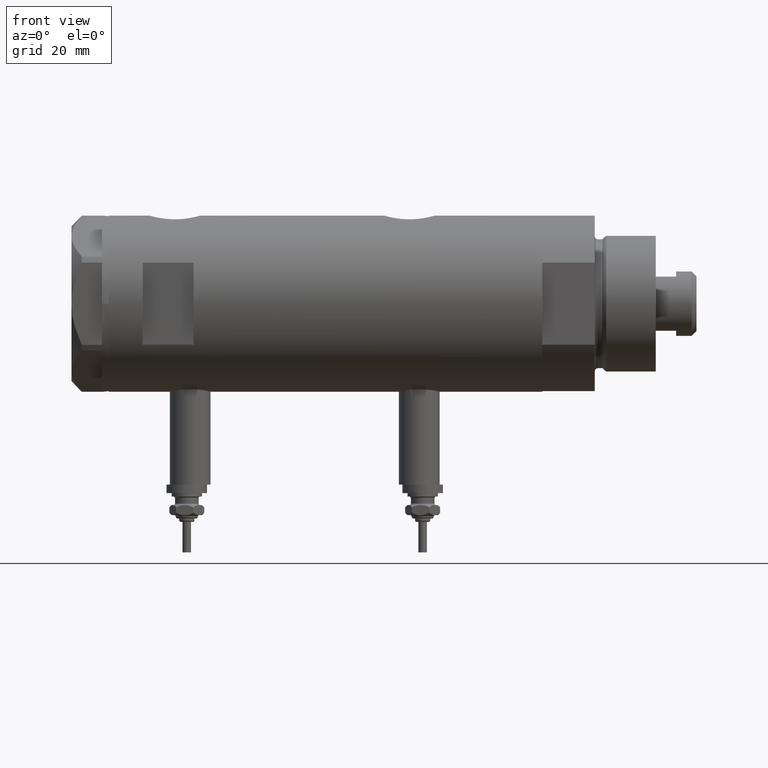
[diagram: clean part render]
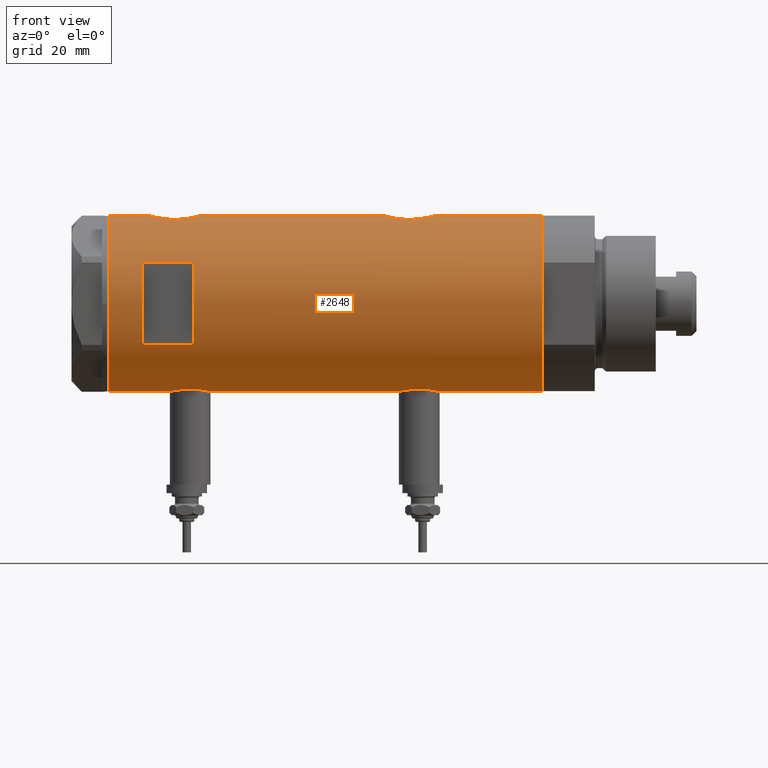
[diagram: same view with one face highlighted and labeled with its STEP entity id]
A machine part, front view. The second image highlights one B-rep face of the part: STEP entity #2648.
In plain terms, the highlighted cylindrical surface (partial cylindrical patch) has radius 26 mm, axis along (-1, -0, 0).
Its self-contained STEP definition (entity closure, byte-faithful):
#16 = CARTESIAN_POINT ( 'NONE',  ( -26.00000000000000355, 3.184077527325983904E-15, -33.90000000000001279 ) ) ;
#47 = CARTESIAN_POINT ( 'NONE',  ( -25.72076778631230454, -3.815670258243487822, -32.61687810531881127 ) ) ;
#74 = CARTESIAN_POINT ( 'NONE',  ( -25.28680988956730502, -6.048472998962281189, -29.27627694188244334 ) ) ;
#95 = VECTOR ( 'NONE', #6230, 1000.000000000000000 ) ;
#106 = CARTESIAN_POINT ( 'NONE',  ( -25.99009752186833566, -0.8230863847107473541, -21.44082928593318016 ) ) ;
#150 = DIRECTION ( 'NONE',  ( 0.000000000000000000, 0.000000000000000000, 1.000000000000000000 ) ) ;
#208 = CARTESIAN_POINT ( 'NONE',  ( -25.99999999999998934, -0.4144764235405755670, 46.19999999999998863 ) ) ;
#233 = CARTESIAN_POINT ( 'NONE',  ( -26.00000000000000355, 3.184081677783118585E-15, -63.95000000000000995 ) ) ;
#243 = CARTESIAN_POINT ( 'NONE',  ( -25.67063510297210271, -4.128418051804841227, 44.64682575271267240 ) ) ;
#274 = CARTESIAN_POINT ( 'NONE',  ( 25.98599366666248756, -0.9828433289544070695, -17.29811598276525686 ) ) ;
#306 = CARTESIAN_POINT ( 'NONE',  ( 24.92415241886516242, -7.401968919186685092, -23.51676462555185765 ) ) ;
#340 = CARTESIAN_POINT ( 'NONE',  ( 25.11243836838846377, -6.738202653785828389, -28.07956649155160278 ) ) ;
#345 = DIRECTION ( 'NONE',  ( 0.000000000000000000, 0.000000000000000000, 1.000000000000000000 ) ) ;
#365 = CARTESIAN_POINT ( 'NONE',  ( 26.00000000000000355, -3.975025925197986111E-20, 51.95000000000000284 ) ) ;
#368 = CARTESIAN_POINT ( 'NONE',  ( 26.00000000000000355, 6.604469597105595072E-16, -32.25000000000000000 ) ) ;
#386 = CARTESIAN_POINT ( 'NONE',  ( -26.00000000000000355, 3.184077527313362130E-15, 33.70000000000000995 ) ) ;
#392 = CARTESIAN_POINT ( 'NONE',  ( 25.98599366666249466, -0.9828433289544075135, 51.90188401723472822 ) ) ;
#395 = CARTESIAN_POINT ( 'NONE',  ( 24.96970063328116751, -7.247045583599691199, -26.69719214854802658 ) ) ;
#422 = DIRECTION ( 'NONE',  ( -0.000000000000000000, 0.000000000000000000, -1.000000000000000000 ) ) ;
#429 = VERTEX_POINT ( 'NONE', #666 ) ;
#470 = ORIENTED_EDGE ( 'NONE', *, *, #5350, .F. ) ;
#475 = CARTESIAN_POINT ( 'NONE',  ( -26.00000000000000355, 3.184077527313362130E-15, 33.70000000000000995 ) ) ;
#510 = DIRECTION ( 'NONE',  ( 1.000000000000000000, 0.000000000000000000, 0.000000000000000000 ) ) ;
#545 = EDGE_CURVE ( 'NONE', #4978, #2285, #5662, .T. ) ;
#559 = CARTESIAN_POINT ( 'NONE',  ( -25.92364458890659762, -2.026637113504535570, -21.72369009308525278 ) ) ;
#586 = CARTESIAN_POINT ( 'NONE',  ( -25.78943824387523875, -3.306687742228911819, -32.95754138783468079 ) ) ;
#589 = ORIENTED_EDGE ( 'NONE', *, *, #3321, .F. ) ;
#590 = CARTESIAN_POINT ( 'NONE',  ( -25.74330903162726614, -3.648508829439214285, 45.02867714715799252 ) ) ;
#617 = CARTESIAN_POINT ( 'NONE',  ( -25.67167563980648382, -4.129238867693853621, -32.35934056431106143 ) ) ;
#625 = CARTESIAN_POINT ( 'NONE',  ( -25.38662204309617110, -5.616507264474310368, 42.72199377719325497 ) ) ;
#659 = CARTESIAN_POINT ( 'NONE',  ( -12.12435565298214080, -23.00000000000000355, 53.94999999999999574 ) ) ;
#666 = CARTESIAN_POINT ( 'NONE',  ( -26.00000000000000355, 3.184081677783118585E-15, 63.95000000000000995 ) ) ;
#691 = CARTESIAN_POINT ( 'NONE',  ( -25.49846181844015192, -5.083495422175122513, 43.59177503382596797 ) ) ;
#749 = ORIENTED_EDGE ( 'NONE', *, *, #4256, .F. ) ;
#787 = CARTESIAN_POINT ( 'NONE',  ( 25.38109653984944103, -5.641393955635660262, 49.39819092448751547 ) ) ;
#789 = CARTESIAN_POINT ( 'NONE',  ( 25.11342038069227200, -6.734617143597201760, -21.41229304209504747 ) ) ;
#801 = EDGE_CURVE ( 'NONE', #5942, #5199, #6120, .T. ) ;
#812 = VECTOR ( 'NONE', #2725, 1000.000000000000000 ) ;
#816 = CARTESIAN_POINT ( 'NONE',  ( 26.00000000000000355, 2.393127611988522640E-16, 36.95000000000000284 ) ) ;
#819 = CARTESIAN_POINT ( 'NONE',  ( 25.93085545515511470, -1.956676574435509242, -17.49272963169731909 ) ) ;
#838 = LINE ( 'NONE', #4687, #6263 ) ;
#850 = CARTESIAN_POINT ( 'NONE',  ( 25.78993643992928853, -3.329561377902404029, 51.18821560278738048 ) ) ;
#853 = CARTESIAN_POINT ( 'NONE',  ( 25.93098857934040780, -1.953835360821264411, -32.00773664702560950 ) ) ;
#867 = AXIS2_PLACEMENT_3D ( 'NONE', #3370, #2299, #1333 ) ;
#881 = CARTESIAN_POINT ( 'NONE',  ( 25.52449676677459323, -4.953491517965875168, 38.81325508665924673 ) ) ;
#883 = CARTESIAN_POINT ( 'NONE',  ( 25.59500516383205593, -4.575229401795793294, -30.69787755065420143 ) ) ;
#953 = CARTESIAN_POINT ( 'NONE',  ( -25.31551596256916525, -5.928819821281959612, 37.92988508095918121 ) ) ;
#986 = CARTESIAN_POINT ( 'NONE',  ( -25.28632996747171902, -6.050474653715411932, 41.56911870841535972 ) ) ;
#1003 = CARTESIAN_POINT ( 'NONE',  ( -25.42977453177915592, -5.420307583276851915, -30.78812271793362498 ) ) ;
#1014 = DIRECTION ( 'NONE',  ( 0.000000000000000000, 0.000000000000000000, 1.000000000000000000 ) ) ;
#1034 = CARTESIAN_POINT ( 'NONE',  ( -25.71926338401910073, -3.813768894920913421, -22.69427860166186051 ) ) ;
#1042 = CARTESIAN_POINT ( 'NONE',  ( -25.24022290516698419, -6.239518219915426656, 39.53402784061567843 ) ) ;
#1045 = CARTESIAN_POINT ( 'NONE',  ( -26.00000000000000355, 3.184077527325983904E-15, -33.90000000000001279 ) ) ;
#1049 = CARTESIAN_POINT ( 'NONE',  ( 26.00000000000000355, 0.000000000000000000, -63.95000000000000995 ) ) ;
#1072 = EDGE_LOOP ( 'NONE', ( #3709, #470, #5289, #2751 ) ) ;
#1074 = CARTESIAN_POINT ( 'NONE',  ( -25.99036913299955742, -0.8159609457881432659, 33.73968856968108554 ) ) ;
#1098 = CARTESIAN_POINT ( 'NONE',  ( -25.81232680456767881, -3.137210741985117846, -22.22886342778422630 ) ) ;
#1110 = FACE_OUTER_BOUND ( 'NONE', #4044, .T. ) ;
#1139 = B_SPLINE_CURVE_WITH_KNOTS ( 'NONE', 3,
 ( #16, #3493, #1581, #3458, #3954, #5417, #4948, #3402, #586, #47, #617, #2055, #4532, #1003, #1961, #2948, #74, #5358, #5903, #5875, #4915, #4888, #2480, #1517, #5482, #2022, #4435, #3983, #5933, #3528, #1994, #2536, #2448, #1034, #2979, #1098, #4497, #559, #3039, #106, #2510, #4016 ),
 .UNSPECIFIED., .F., .F.,
 ( 4, 2, 2, 2, 2, 2, 2, 2, 2, 2, 2, 2, 2, 2, 2, 2, 2, 2, 2, 2, 4 ),
 ( 0.01961238453869442941, 0.02083783025472766420, 0.02206327597076090247, 0.02267599882877751813, 0.02328872168679413032, 0.02451416740282735818, 0.02573961311886058950, 0.02696505883489381389, 0.02819050455092704521, 0.02880322740894365394, 0.02941595026696026266, 0.03064139598299348011, 0.03186684169902669755, 0.03309228741505991500, 0.03370501027307653413, 0.03431773313109314633, 0.03493045598910975852, 0.03554317884712637071, 0.03676862456315959510, 0.03799407027919281948, 0.03921951599522604387 ),
 .UNSPECIFIED. ) ;
#1175 = VERTEX_POINT ( 'NONE', #4102 ) ;
#1176 = CARTESIAN_POINT ( 'NONE',  ( -25.59645788645698872, -4.565358797148513226, 44.22330529203480864 ) ) ;
#1198 = ORIENTED_EDGE ( 'NONE', *, *, #801, .F. ) ;
#1204 = CARTESIAN_POINT ( 'NONE',  ( -26.00000000000000355, -2.813058302341337106E-16, 46.20000000000000284 ) ) ;
#1260 = CARTESIAN_POINT ( 'NONE',  ( 24.89478872726946435, -7.499966281647702182, 44.69821850634780702 ) ) ;
#1263 = CARTESIAN_POINT ( 'NONE',  ( 24.96672817551788270, -7.257586026187391681, -22.79615800278702409 ) ) ;
#1276 = EDGE_CURVE ( 'NONE', #4978, #3377, #4481, .T. ) ;
#1297 = CARTESIAN_POINT ( 'NONE',  ( 25.00829008792691965, -7.115081037226468119, 46.87301003740818572 ) ) ;
#1300 = CARTESIAN_POINT ( 'NONE',  ( 25.72873412774686486, -3.768477344985556421, -18.24712539855537585 ) ) ;
#1312 = CARTESIAN_POINT ( 'NONE',  ( -26.00000000000000355, -2.813058302341337106E-16, 46.20000000000000284 ) ) ;
#1328 = CARTESIAN_POINT ( 'NONE',  ( 25.31004928890825312, -5.952041021437453949, 49.01980599883506073 ) ) ;
#1331 = CARTESIAN_POINT ( 'NONE',  ( 26.00000000000000355, -3.975025925197986111E-20, -17.25000000000000000 ) ) ;
#1333 = DIRECTION ( 'NONE',  ( -1.000000000000000000, 0.000000000000000000, 0.000000000000000000 ) ) ;
#1363 = CARTESIAN_POINT ( 'NONE',  ( 25.30930190055639883, -5.959775463244126215, 39.87025956521971892 ) ) ;
#1374 = LINE ( 'NONE', #3253, #2160 ) ;
#1375 = VERTEX_POINT ( 'NONE', #1956 ) ;
#1379 = VECTOR ( 'NONE', #5052, 1000.000000000000000 ) ;
#1395 = CARTESIAN_POINT ( 'NONE',  ( 25.11342038069227200, -6.734617143597205313, 47.78770695790494472 ) ) ;
#1473 = LINE ( 'NONE', #2992, #1951 ) ;
#1492 = CARTESIAN_POINT ( 'NONE',  ( 26.00000000000000355, 6.604469597105595072E-16, -32.25000000000000000 ) ) ;
#1517 = CARTESIAN_POINT ( 'NONE',  ( -25.28632996747171546, -6.050474653715413709, -26.03088129158463815 ) ) ;
#1523 = CARTESIAN_POINT ( 'NONE',  ( -25.81160981652327280, -3.129523010631799718, 34.53607026277927616 ) ) ;
#1581 = CARTESIAN_POINT ( 'NONE',  ( -25.99036913299956097, -0.8159609457881449313, -33.86031143031890878 ) ) ;
#1646 = VERTEX_POINT ( 'NONE', #1049 ) ;
#1682 = CARTESIAN_POINT ( 'NONE',  ( -25.95206678899177888, -1.628763264760260565, 45.99800813330215021 ) ) ;
#1684 = CARTESIAN_POINT ( 'NONE',  ( 12.12435565298214080, -23.00000000000000355, 53.94999999999999574 ) ) ;
#1723 = EDGE_CURVE ( 'NONE', #1646, #4799, #6013, .T. ) ;
#1739 = CARTESIAN_POINT ( 'NONE',  ( 24.89478872726946079, -7.499966281647700406, -24.50178149365219227 ) ) ;
#1775 = VECTOR ( 'NONE', #150, 1000.000000000000000 ) ;
#1777 = CARTESIAN_POINT ( 'NONE',  ( 25.03461301890608581, -7.019803056070506919, -27.40183183106897147 ) ) ;
#1806 = CARTESIAN_POINT ( 'NONE',  ( 24.91324908721446008, -7.438459228814657820, 45.44017499374189839 ) ) ;
#1809 = CARTESIAN_POINT ( 'NONE',  ( 25.62983961939740496, -4.376509667782456425, -30.84558499042960378 ) ) ;
#1835 = CARTESIAN_POINT ( 'NONE',  ( 25.27534302296962565, -6.097250460344749712, 48.82409613097076573 ) ) ;
#1861 = DIRECTION ( 'NONE',  ( 1.000000000000000000, 0.000000000000000000, 0.000000000000000000 ) ) ;
#1865 = CARTESIAN_POINT ( 'NONE',  ( 24.90947356773250121, -7.451722770779339200, 43.46809158171848964 ) ) ;
#1911 = CARTESIAN_POINT ( 'NONE',  ( -25.57228991600092627, -4.705691472451699831, 35.81660309875347536 ) ) ;
#1942 = CARTESIAN_POINT ( 'NONE',  ( -12.12435565298214080, -23.00000000000000355, 38.94999999999999574 ) ) ;
#1951 = VECTOR ( 'NONE', #5887, 1000.000000000000000 ) ;
#1956 = CARTESIAN_POINT ( 'NONE',  ( 12.12435565298214080, -23.00000000000000355, 38.94999999999999574 ) ) ;
#1961 = CARTESIAN_POINT ( 'NONE',  ( -25.38744165544135711, -5.612847683295910883, -30.42987583238477001 ) ) ;
#1971 = CARTESIAN_POINT ( 'NONE',  ( -25.92425332714050867, -2.018894156999440526, 34.02103879324670999 ) ) ;
#1991 = VERTEX_POINT ( 'NONE', #659 ) ;
#1994 = CARTESIAN_POINT ( 'NONE',  ( -25.59645788645698872, -4.565358797148519443, -23.37669470796522120 ) ) ;
#2001 = CARTESIAN_POINT ( 'NONE',  ( -25.25769689814630325, -6.168504065326071206, 38.92353364703254925 ) ) ;
#2022 = CARTESIAN_POINT ( 'NONE',  ( -25.38662204309616754, -5.616507264474312144, -24.87800622280676777 ) ) ;
#2055 = CARTESIAN_POINT ( 'NONE',  ( -25.57228991600092272, -4.705691472451700719, -31.78339690124654027 ) ) ;
#2061 = CARTESIAN_POINT ( 'NONE',  ( -25.92364458890658696, -2.026637113504536458, 45.87630990691474153 ) ) ;
#2106 = CARTESIAN_POINT ( 'NONE',  ( 0.000000000000000000, 0.000000000000000000, -63.95000000000000995 ) ) ;
#2128 = CARTESIAN_POINT ( 'NONE',  ( -25.64593536028936782, -4.278686337618957225, 44.51031602960880207 ) ) ;
#2156 = AXIS2_PLACEMENT_3D ( 'NONE', #2106, #4545, #4513 ) ;
#2160 = VECTOR ( 'NONE', #345, 1000.000000000000000 ) ;
#2195 = CARTESIAN_POINT ( 'NONE',  ( -25.81232680456767170, -3.137210741985118290, 45.37113657221578933 ) ) ;
#2222 = CARTESIAN_POINT ( 'NONE',  ( 25.89059789403176381, -2.425642437452261380, -17.63622552757698969 ) ) ;
#2254 = CARTESIAN_POINT ( 'NONE',  ( 26.00000000000000711, -0.4910237949823162418, 51.95000000000000995 ) ) ;
#2257 = CARTESIAN_POINT ( 'NONE',  ( 25.88994451797512042, -2.432613607265603495, -31.86140968713203137 ) ) ;
#2285 = VERTEX_POINT ( 'NONE', #5602 ) ;
#2294 = CARTESIAN_POINT ( 'NONE',  ( 25.30930190055639883, -5.959775463244125326, -29.32974043478030168 ) ) ;
#2299 = DIRECTION ( 'NONE',  ( 0.000000000000000000, 0.000000000000000000, 1.000000000000000000 ) ) ;
#2323 = CARTESIAN_POINT ( 'NONE',  ( 24.91324908721446008, -7.438459228814659596, -23.75982500625810445 ) ) ;
#2347 = CARTESIAN_POINT ( 'NONE',  ( 24.96672817551788626, -7.257586026187397898, 46.40384199721297165 ) ) ;
#2349 = CARTESIAN_POINT ( 'NONE',  ( 25.98569226047905545, -0.9886551788957204101, -32.20082376600176843 ) ) ;
#2401 = CARTESIAN_POINT ( 'NONE',  ( 0.000000000000000000, 0.000000000000000000, 63.95000000000000995 ) ) ;
#2448 = CARTESIAN_POINT ( 'NONE',  ( -25.67063510297209561, -4.128418051804845668, -22.95317424728735389 ) ) ;
#2455 = CARTESIAN_POINT ( 'NONE',  ( -25.24765475072630139, -6.209883762780005867, 40.76678184355099432 ) ) ;
#2478 = EDGE_CURVE ( 'NONE', #429, #2285, #4106, .T. ) ;
#2480 = CARTESIAN_POINT ( 'NONE',  ( -25.24765475072629783, -6.209883762780005867, -26.83321815644901065 ) ) ;
#2499 = EDGE_CURVE ( 'NONE', #6168, #429, #1473, .T. ) ;
#2510 = CARTESIAN_POINT ( 'NONE',  ( -25.99999999999999645, -0.4144764235405757891, -21.39999999999999858 ) ) ;
#2520 = CARTESIAN_POINT ( 'NONE',  ( 12.12435565298214080, -23.00000000000000355, -63.95000000000000995 ) ) ;
#2536 = CARTESIAN_POINT ( 'NONE',  ( -25.64593536028935716, -4.278686337618962554, -23.08968397039123133 ) ) ;
#2550 = VERTEX_POINT ( 'NONE', #1942 ) ;
#2597 = CIRCLE ( 'NONE', #867, 26.00000000000000355 ) ;
#2624 = B_SPLINE_CURVE_WITH_KNOTS ( 'NONE', 3,
 ( #475, #3500, #1074, #3015, #1971, #5392, #6300, #1523, #2927, #4981, #4956, #1911, #3381, #5330, #4445, #953, #2899, #2001, #3960, #1042, #2987, #5366, #2455, #986, #3120, #625, #5558, #691, #4637, #4539, #1176, #2128, #243, #2638, #590, #2195, #5078, #2061, #1682, #4602, #208, #1204 ),
 .UNSPECIFIED., .F., .F.,
 ( 4, 2, 2, 2, 2, 2, 2, 2, 2, 2, 2, 2, 2, 2, 2, 2, 2, 2, 2, 2, 4 ),
 ( 0.01961238453869442941, 0.02083783025472767114, 0.02206327597076090941, 0.02267599882877753201, 0.02328872168679415461, 0.02451416740282739287, 0.02573961311886063114, 0.02696505883489386940, 0.02819050455092710766, 0.02880322740894371986, 0.02941595026696032858, 0.03064139598299354950, 0.03186684169902676694, 0.03309228741505998439, 0.03370501027307658271, 0.03431773313109318796, 0.03493045598910978627, 0.03554317884712639153, 0.03676862456315960898, 0.03799407027919282642, 0.03921951599522604387 ),
 .UNSPECIFIED. ) ;
#2638 = CARTESIAN_POINT ( 'NONE',  ( -25.71926338401908652, -3.813768894920905872, 44.90572139833817289 ) ) ;
#2648 = ADVANCED_FACE ( 'NONE', ( #1110, #3089 ), #3644, .T. ) ;
#2725 = DIRECTION ( 'NONE',  ( 0.000000000000000000, 0.000000000000000000, 1.000000000000000000 ) ) ;
#2732 = CARTESIAN_POINT ( 'NONE',  ( 25.01107424167500071, -7.102941973849614676, 42.02937151337422250 ) ) ;
#2751 = ORIENTED_EDGE ( 'NONE', *, *, #5196, .F. ) ;
#2770 = CARTESIAN_POINT ( 'NONE',  ( 25.52567976009756379, -4.956266804246105551, -19.09980072540905383 ) ) ;
#2797 = CARTESIAN_POINT ( 'NONE',  ( 25.59500516383206303, -4.575229401795788853, 38.50212244934581207 ) ) ;
#2802 = CARTESIAN_POINT ( 'NONE',  ( 26.00000000000000000, -0.4982617809740598758, -32.24999999999999289 ) ) ;
#2824 = CARTESIAN_POINT ( 'NONE',  ( 25.78902964777116225, -3.336582972512940781, 37.71524159542261145 ) ) ;
#2873 = EDGE_CURVE ( 'NONE', #5262, #3377, #1374, .T. ) ;
#2899 = CARTESIAN_POINT ( 'NONE',  ( -25.28680988956730857, -6.048472998962280300, 38.32372305811758650 ) ) ;
#2927 = CARTESIAN_POINT ( 'NONE',  ( -25.78943824387524231, -3.306687742228910487, 34.64245861216535616 ) ) ;
#2941 = ORIENTED_EDGE ( 'NONE', *, *, #1723, .T. ) ;
#2948 = CARTESIAN_POINT ( 'NONE',  ( -25.31551596256915815, -5.928819821281960500, -29.67011491904085929 ) ) ;
#2961 = DIRECTION ( 'NONE',  ( 1.000000000000000000, 0.000000000000000000, 0.000000000000000000 ) ) ;
#2979 = CARTESIAN_POINT ( 'NONE',  ( -25.74330903162726614, -3.648508829439216061, -22.57132285284203732 ) ) ;
#2987 = CARTESIAN_POINT ( 'NONE',  ( -25.23763877699556701, -6.249927116972441965, 39.74164472334533116 ) ) ;
#2992 = CARTESIAN_POINT ( 'NONE',  ( -26.00000000000000355, 3.184081677783118585E-15, -63.95000000000000995 ) ) ;
#3015 = CARTESIAN_POINT ( 'NONE',  ( -25.95218276861526618, -1.627663810194429406, 33.90149019612396586 ) ) ;
#3039 = CARTESIAN_POINT ( 'NONE',  ( -25.95206678899177533, -1.628763264760259677, -21.60199186669786542 ) ) ;
#3081 = CIRCLE ( 'NONE', #6256, 26.00000000000000355 ) ;
#3089 = FACE_BOUND ( 'NONE', #1072, .T. ) ;
#3120 = CARTESIAN_POINT ( 'NONE',  ( -25.31538696791480447, -5.929326713517952818, 41.96796632208099709 ) ) ;
#3175 = EDGE_CURVE ( 'NONE', #4446, #6168, #2624, .T. ) ;
#3222 = CARTESIAN_POINT ( 'NONE',  ( 25.78902964777116225, -3.336582972512953660, -31.48475840457738073 ) ) ;
#3231 = ORIENTED_EDGE ( 'NONE', *, *, #545, .T. ) ;
#3247 = CARTESIAN_POINT ( 'NONE',  ( 25.38125492692911322, -5.649348210287286953, 39.49305665653605502 ) ) ;
#3249 = CARTESIAN_POINT ( 'NONE',  ( 25.38109653984943392, -5.641393955635657598, -19.80180907551248737 ) ) ;
#3253 = CARTESIAN_POINT ( 'NONE',  ( 26.00000000000000355, 0.000000000000000000, -63.95000000000000995 ) ) ;
#3276 = CARTESIAN_POINT ( 'NONE',  ( 24.89854802586676286, -7.487520416261735257, 44.94815683577904508 ) ) ;
#3279 = CARTESIAN_POINT ( 'NONE',  ( 25.01107424167501136, -7.102941973849615565, -27.17062848662579100 ) ) ;
#3308 = CARTESIAN_POINT ( 'NONE',  ( 25.48871066912672489, -5.133852125086502127, 38.97709693256022945 ) ) ;
#3312 = CARTESIAN_POINT ( 'NONE',  ( 25.78993643992928853, -3.329561377902408470, -18.01178439721262592 ) ) ;
#3321 = EDGE_CURVE ( 'NONE', #5262, #4799, #6146, .T. ) ;
#3337 = CARTESIAN_POINT ( 'NONE',  ( 25.88994451797512042, -2.432613607265590172, 37.33859031286797858 ) ) ;
#3338 = ORIENTED_EDGE ( 'NONE', *, *, #1276, .F. ) ;
#3370 = CARTESIAN_POINT ( 'NONE',  ( 0.000000000000000000, 0.000000000000000000, 38.94999999999999574 ) ) ;
#3377 = VERTEX_POINT ( 'NONE', #4433 ) ;
#3381 = CARTESIAN_POINT ( 'NONE',  ( -25.52190669608696183, -4.968444991210422934, 36.13658907807516130 ) ) ;
#3402 = CARTESIAN_POINT ( 'NONE',  ( -25.81160981652327280, -3.129523010631799274, -33.06392973722074657 ) ) ;
#3458 = CARTESIAN_POINT ( 'NONE',  ( -25.95218276861526618, -1.627663810194431626, -33.69850980387604267 ) ) ;
#3480 = CARTESIAN_POINT ( 'NONE',  ( -26.00000000000000355, 3.184081677783118585E-15, -63.95000000000000995 ) ) ;
#3493 = CARTESIAN_POINT ( 'NONE',  ( -26.00000000000000355, -0.4086738135806045058, -33.90000000000001990 ) ) ;
#3500 = CARTESIAN_POINT ( 'NONE',  ( -26.00000000000000000, -0.4086738135806028960, 33.70000000000000995 ) ) ;
#3528 = CARTESIAN_POINT ( 'NONE',  ( -25.57167894663062313, -4.701762988462092174, -23.52719549807583022 ) ) ;
#3596 = ORIENTED_EDGE ( 'NONE', *, *, #5886, .T. ) ;
#3644 = CYLINDRICAL_SURFACE ( 'NONE', #2156, 26.00000000000000355 ) ;
#3699 = CARTESIAN_POINT ( 'NONE',  ( 25.38125492692911322, -5.649348210287286953, -29.70694334346396204 ) ) ;
#3709 = ORIENTED_EDGE ( 'NONE', *, *, #5490, .F. ) ;
#3730 = CIRCLE ( 'NONE', #6084, 26.00000000000000355 ) ;
#3733 = CARTESIAN_POINT ( 'NONE',  ( 25.03461301890608581, -7.019803056070501590, 41.79816816893102072 ) ) ;
#3736 = CARTESIAN_POINT ( 'NONE',  ( 24.89475831528845617, -7.500067228253131546, -25.24337428253536331 ) ) ;
#3764 = CARTESIAN_POINT ( 'NONE',  ( 25.72912156655465665, -3.765948295762493458, -31.25442975399221623 ) ) ;
#3792 = CARTESIAN_POINT ( 'NONE',  ( 24.95200646071793571, -7.307522494171279526, 42.74392435812723079 ) ) ;
#3797 = AXIS2_PLACEMENT_3D ( 'NONE', #2401, #1014, #2961 ) ;
#3817 = EDGE_CURVE ( 'NONE', #5436, #1991, #3081, .T. ) ;
#3954 = CARTESIAN_POINT ( 'NONE',  ( -25.92425332714051223, -2.018894156999441858, -33.57896120675329854 ) ) ;
#3960 = CARTESIAN_POINT ( 'NONE',  ( -25.25025691038242570, -6.198787452305309920, 39.12558834604205771 ) ) ;
#3983 = CARTESIAN_POINT ( 'NONE',  ( -25.49846181844015192, -5.083495422175126066, -24.00822496617402635 ) ) ;
#3995 = CARTESIAN_POINT ( 'NONE',  ( 26.00000000000000355, -3.975025925197986111E-20, -17.25000000000000000 ) ) ;
#4016 = CARTESIAN_POINT ( 'NONE',  ( -26.00000000000000355, 9.891741702313250758E-16, -21.40000000000000568 ) ) ;
#4044 = EDGE_LOOP ( 'NONE', ( #1198, #3596, #2941, #589, #5585, #3338, #3231, #5499, #4504, #4589, #749, #4351 ) ) ;
#4102 = CARTESIAN_POINT ( 'NONE',  ( -26.00000000000000355, 9.891741702313250758E-16, -21.40000000000000568 ) ) ;
#4106 = CIRCLE ( 'NONE', #3797, 26.00000000000000355 ) ;
#4181 = CARTESIAN_POINT ( 'NONE',  ( 25.31004928890824957, -5.952041021437452173, -20.18019400116494211 ) ) ;
#4215 = CARTESIAN_POINT ( 'NONE',  ( 25.89059789403177447, -2.425642437452259603, 51.56377447242302736 ) ) ;
#4219 = CARTESIAN_POINT ( 'NONE',  ( 26.00000000000000355, -0.4910237949823167969, -17.25000000000000355 ) ) ;
#4253 = CARTESIAN_POINT ( 'NONE',  ( 25.48871066912673200, -5.133852125086503015, -30.22290306743977695 ) ) ;
#4256 = EDGE_CURVE ( 'NONE', #1175, #4446, #838, .T. ) ;
#4290 = CARTESIAN_POINT ( 'NONE',  ( 26.00000000000000355, -3.975025925197986111E-20, 51.95000000000000284 ) ) ;
#4305 = CARTESIAN_POINT ( 'NONE',  ( 25.93098857934040424, -1.953835360821270184, 37.19226335297439334 ) ) ;
#4351 = ORIENTED_EDGE ( 'NONE', *, *, #5581, .F. ) ;
#4433 = CARTESIAN_POINT ( 'NONE',  ( 26.00000000000000355, 2.393127611988522640E-16, 36.95000000000000284 ) ) ;
#4435 = CARTESIAN_POINT ( 'NONE',  ( -25.42883439573800075, -5.424786127492330579, -24.51918542739092288 ) ) ;
#4445 = CARTESIAN_POINT ( 'NONE',  ( -25.38744165544137132, -5.612847683295914436, 37.17012416761524918 ) ) ;
#4446 = VERTEX_POINT ( 'NONE', #386 ) ;
#4481 = B_SPLINE_CURVE_WITH_KNOTS ( 'NONE', 3,
 ( #365, #2254, #392, #6224, #4215, #850, #4768, #5690, #5651, #5173, #787, #1328, #1835, #6254, #1395, #1297, #2347, #5264, #1806, #3276, #1260, #6167, #1865, #3792, #5749, #2732, #3733, #5235, #5781, #1363, #3247, #3308, #881, #2797, #5200, #4821, #2824, #3337, #4305, #6128, #5288, #816 ),
 .UNSPECIFIED., .F., .F.,
 ( 4, 2, 2, 2, 2, 2, 2, 2, 2, 2, 2, 2, 2, 2, 2, 2, 2, 2, 2, 2, 4 ),
 ( 0.02357432247332888128, 0.02504731828495723733, 0.02652031409658558991, 0.02799330990821394596, 0.02946630571984230201, 0.03020280362565647136, 0.03093930153147064072, 0.03241229734309895860, 0.03388529315472728343, 0.03462179106054144584, 0.03535828896635560825, 0.03683128477798394695, 0.03756778268379813018, 0.03830428058961230647, 0.03977727640124069375, 0.04125027221286907408, 0.04198677011868326425, 0.04272326802449744054, 0.04419626383612580006, 0.04566925964775415958, 0.04714225545938251216 ),
 .UNSPECIFIED. ) ;
#4497 = CARTESIAN_POINT ( 'NONE',  ( -25.85385060263650558, -2.778671585188185134, -22.03685548695763430 ) ) ;
#4504 = ORIENTED_EDGE ( 'NONE', *, *, #2499, .F. ) ;
#4513 = DIRECTION ( 'NONE',  ( 1.000000000000000000, 0.000000000000000000, 0.000000000000000000 ) ) ;
#4532 = CARTESIAN_POINT ( 'NONE',  ( -25.52190669608696183, -4.968444991210423822, -31.46341092192486855 ) ) ;
#4539 = CARTESIAN_POINT ( 'NONE',  ( -25.57167894663061958, -4.701762988462087733, 44.07280450192416765 ) ) ;
#4545 = DIRECTION ( 'NONE',  ( 0.000000000000000000, 0.000000000000000000, 1.000000000000000000 ) ) ;
#4589 = ORIENTED_EDGE ( 'NONE', *, *, #3175, .F. ) ;
#4602 = CARTESIAN_POINT ( 'NONE',  ( -25.99009752186832500, -0.8230863847107482423, 46.15917071406681060 ) ) ;
#4637 = CARTESIAN_POINT ( 'NONE',  ( -25.52274351135605102, -4.960534548086199536, 43.75751745340735255 ) ) ;
#4687 = CARTESIAN_POINT ( 'NONE',  ( -26.00000000000000355, 3.184081677783118585E-15, -63.95000000000000995 ) ) ;
#4701 = CARTESIAN_POINT ( 'NONE',  ( 25.00829008792691965, -7.115081037226463678, -22.32698996259181001 ) ) ;
#4736 = CARTESIAN_POINT ( 'NONE',  ( 24.95200646071793926, -7.307522494171277749, -26.45607564187278982 ) ) ;
#4755 = DIRECTION ( 'NONE',  ( 0.000000000000000000, 0.000000000000000000, 1.000000000000000000 ) ) ;
#4768 = CARTESIAN_POINT ( 'NONE',  ( 25.72873412774685775, -3.768477344985551536, 50.95287460144461988 ) ) ;
#4770 = CARTESIAN_POINT ( 'NONE',  ( 24.89854802586675930, -7.487520416261735257, -24.25184316422095776 ) ) ;
#4799 = VERTEX_POINT ( 'NONE', #1492 ) ;
#4821 = CARTESIAN_POINT ( 'NONE',  ( 25.72912156655465665, -3.765948295762488129, 37.94557024600776174 ) ) ;
#4853 = CARTESIAN_POINT ( 'NONE',  ( 0.000000000000000000, 0.000000000000000000, 53.94999999999999574 ) ) ;
#4888 = CARTESIAN_POINT ( 'NONE',  ( -25.23758491649666169, -6.250144606721703688, -27.23988300428193554 ) ) ;
#4899 = CARTESIAN_POINT ( 'NONE',  ( 26.00000000000000355, 0.000000000000000000, -63.95000000000000995 ) ) ;
#4902 = DIRECTION ( 'NONE',  ( 0.000000000000000000, 0.000000000000000000, 1.000000000000000000 ) ) ;
#4915 = CARTESIAN_POINT ( 'NONE',  ( -25.23763877699557057, -6.249927116972442853, -27.85835527665468803 ) ) ;
#4948 = CARTESIAN_POINT ( 'NONE',  ( -25.85288666140181135, -2.767917424206676635, -33.25742209989672205 ) ) ;
#4956 = CARTESIAN_POINT ( 'NONE',  ( -25.67167563980648382, -4.129238867693851844, 35.24065943568895420 ) ) ;
#4978 = VERTEX_POINT ( 'NONE', #4290 ) ;
#4981 = CARTESIAN_POINT ( 'NONE',  ( -25.72076778631231164, -3.815670258243487378, 34.98312189468123279 ) ) ;
#5052 = DIRECTION ( 'NONE',  ( -0.000000000000000000, -0.000000000000000000, -1.000000000000000000 ) ) ;
#5078 = CARTESIAN_POINT ( 'NONE',  ( -25.85385060263650203, -2.778671585188186910, 45.56314451304237423 ) ) ;
#5080 = CARTESIAN_POINT ( 'NONE',  ( -12.12435565298214080, -23.00000000000000355, -63.95000000000000995 ) ) ;
#5143 = CARTESIAN_POINT ( 'NONE',  ( 24.90947356773249766, -7.451722770779339200, -25.73190841828152742 ) ) ;
#5173 = CARTESIAN_POINT ( 'NONE',  ( 25.41756773306325812, -5.475260495868972122, 49.58140873656950731 ) ) ;
#5196 = EDGE_CURVE ( 'NONE', #1375, #5436, #5983, .T. ) ;
#5199 = VERTEX_POINT ( 'NONE', #1045 ) ;
#5200 = CARTESIAN_POINT ( 'NONE',  ( 25.62983961939739785, -4.376509667782453761, 38.35441500957040262 ) ) ;
#5219 = VECTOR ( 'NONE', #5433, 1000.000000000000000 ) ;
#5235 = CARTESIAN_POINT ( 'NONE',  ( 25.11243836838846732, -6.738202653785822172, 41.12043350844842848 ) ) ;
#5239 = CARTESIAN_POINT ( 'NONE',  ( 25.17393786935996047, -6.507882790539420093, -28.51037333344033442 ) ) ;
#5262 = VERTEX_POINT ( 'NONE', #3995 ) ;
#5264 = CARTESIAN_POINT ( 'NONE',  ( 24.92415241886515176, -7.401968919186680651, 45.68323537444814519 ) ) ;
#5267 = CARTESIAN_POINT ( 'NONE',  ( 25.59665538672496865, -4.580438224580680284, -18.79110872287611400 ) ) ;
#5283 = CARTESIAN_POINT ( 'NONE',  ( 0.000000000000000000, 0.000000000000000000, -63.95000000000000995 ) ) ;
#5288 = CARTESIAN_POINT ( 'NONE',  ( 26.00000000000001066, -0.4982617809740571002, 36.95000000000000995 ) ) ;
#5289 = ORIENTED_EDGE ( 'NONE', *, *, #3817, .F. ) ;
#5330 = CARTESIAN_POINT ( 'NONE',  ( -25.42977453177915947, -5.420307583276853691, 36.81187728206637644 ) ) ;
#5350 = EDGE_CURVE ( 'NONE', #1991, #2550, #6074, .T. ) ;
#5358 = CARTESIAN_POINT ( 'NONE',  ( -25.25769689814630325, -6.168504065326071206, -28.67646635296746283 ) ) ;
#5366 = CARTESIAN_POINT ( 'NONE',  ( -25.23758491649666169, -6.250144606721704577, 40.36011699571809430 ) ) ;
#5392 = CARTESIAN_POINT ( 'NONE',  ( -25.87202607293666645, -2.583404329177992675, 34.25526333145487712 ) ) ;
#5417 = CARTESIAN_POINT ( 'NONE',  ( -25.87202607293667000, -2.583404329177994008, -33.34473666854514562 ) ) ;
#5433 = DIRECTION ( 'NONE',  ( 0.000000000000000000, 0.000000000000000000, 1.000000000000000000 ) ) ;
#5436 = VERTEX_POINT ( 'NONE', #1684 ) ;
#5482 = CARTESIAN_POINT ( 'NONE',  ( -25.31538696791481158, -5.929326713517954595, -25.63203367791900433 ) ) ;
#5490 = EDGE_CURVE ( 'NONE', #2550, #1375, #2597, .T. ) ;
#5499 = ORIENTED_EDGE ( 'NONE', *, *, #2478, .F. ) ;
#5558 = CARTESIAN_POINT ( 'NONE',  ( -25.42883439573800430, -5.424786127492328802, 43.08081457260909275 ) ) ;
#5581 = EDGE_CURVE ( 'NONE', #5199, #1175, #1139, .T. ) ;
#5585 = ORIENTED_EDGE ( 'NONE', *, *, #2873, .T. ) ;
#5602 = CARTESIAN_POINT ( 'NONE',  ( 26.00000000000000355, 0.000000000000000000, 63.95000000000000995 ) ) ;
#5651 = CARTESIAN_POINT ( 'NONE',  ( 25.52567976009756379, -4.956266804246105551, 50.10019927459094191 ) ) ;
#5654 = CARTESIAN_POINT ( 'NONE',  ( 25.52449676677458967, -4.953491517965880497, -30.38674491334075256 ) ) ;
#5662 = LINE ( 'NONE', #6136, #95 ) ;
#5690 = CARTESIAN_POINT ( 'NONE',  ( 25.59665538672497576, -4.580438224580679396, 50.40889127712392082 ) ) ;
#5749 = CARTESIAN_POINT ( 'NONE',  ( 24.96970063328116751, -7.247045583599692975, 42.50280785145199758 ) ) ;
#5781 = CARTESIAN_POINT ( 'NONE',  ( 25.17393786935996403, -6.507882790539422757, 40.68962666655968974 ) ) ;
#5875 = CARTESIAN_POINT ( 'NONE',  ( -25.24022290516699485, -6.239518219915428432, -28.06597215938432655 ) ) ;
#5886 = EDGE_CURVE ( 'NONE', #5942, #1646, #3730, .T. ) ;
#5887 = DIRECTION ( 'NONE',  ( 0.000000000000000000, 0.000000000000000000, 1.000000000000000000 ) ) ;
#5903 = CARTESIAN_POINT ( 'NONE',  ( -25.25025691038242215, -6.198787452305309920, -28.47441165395796503 ) ) ;
#5933 = CARTESIAN_POINT ( 'NONE',  ( -25.52274351135604036, -4.960534548086201312, -23.84248254659267374 ) ) ;
#5942 = VERTEX_POINT ( 'NONE', #3480 ) ;
#5983 = LINE ( 'NONE', #2520, #1775 ) ;
#6013 = LINE ( 'NONE', #4899, #5219 ) ;
#6074 = LINE ( 'NONE', #5080, #1379 ) ;
#6084 = AXIS2_PLACEMENT_3D ( 'NONE', #5283, #4902, #510 ) ;
#6120 = LINE ( 'NONE', #233, #812 ) ;
#6128 = CARTESIAN_POINT ( 'NONE',  ( 25.98569226047905190, -0.9886551788957265163, 36.99917623399823441 ) ) ;
#6131 = CARTESIAN_POINT ( 'NONE',  ( 25.27534302296961144, -6.097250460344744383, -20.37590386902925843 ) ) ;
#6136 = CARTESIAN_POINT ( 'NONE',  ( 26.00000000000000355, 0.000000000000000000, -63.95000000000000995 ) ) ;
#6146 = B_SPLINE_CURVE_WITH_KNOTS ( 'NONE', 3,
 ( #1331, #4219, #274, #819, #2222, #3312, #1300, #5267, #2770, #6170, #3249, #4181, #6131, #6200, #789, #4701, #1263, #306, #2323, #4770, #1739, #3736, #5143, #4736, #395, #3279, #1777, #340, #5239, #2294, #3699, #4253, #5654, #883, #1809, #3764, #3222, #2257, #853, #2349, #2802, #368 ),
 .UNSPECIFIED., .F., .F.,
 ( 4, 2, 2, 2, 2, 2, 2, 2, 2, 2, 2, 2, 2, 2, 2, 2, 2, 2, 2, 2, 4 ),
 ( 0.02357432247332886047, 0.02504731828495720264, 0.02652031409658554134, 0.02799330990821388351, 0.02946630571984222569, 0.03020280362565639504, 0.03093930153147056439, 0.03241229734309891003, 0.03388529315472725567, 0.03462179106054142502, 0.03535828896635559437, 0.03683128477798394695, 0.03756778268379813018, 0.03830428058961231341, 0.03977727640124066599, 0.04125027221286903245, 0.04198677011868321568, 0.04272326802449739891, 0.04419626383612575149, 0.04566925964775410407, 0.04714225545938246359 ),
 .UNSPECIFIED. ) ;
#6167 = CARTESIAN_POINT ( 'NONE',  ( 24.89475831528844552, -7.500067228253129770, 43.95662571746462532 ) ) ;
#6168 = VERTEX_POINT ( 'NONE', #1312 ) ;
#6170 = CARTESIAN_POINT ( 'NONE',  ( 25.41756773306324035, -5.475260495868973010, -19.61859126343050974 ) ) ;
#6200 = CARTESIAN_POINT ( 'NONE',  ( 25.17510548814052740, -6.503212750695460009, -20.98238212184651275 ) ) ;
#6224 = CARTESIAN_POINT ( 'NONE',  ( 25.93085545515512180, -1.956676574435509686, 51.70727036830268020 ) ) ;
#6230 = DIRECTION ( 'NONE',  ( 0.000000000000000000, 0.000000000000000000, 1.000000000000000000 ) ) ;
#6254 = CARTESIAN_POINT ( 'NONE',  ( 25.17510548814052740, -6.503212750695464450, 48.21761787815347589 ) ) ;
#6256 = AXIS2_PLACEMENT_3D ( 'NONE', #4853, #422, #1861 ) ;
#6263 = VECTOR ( 'NONE', #4755, 1000.000000000000000 ) ;
#6300 = CARTESIAN_POINT ( 'NONE',  ( -25.85288666140180780, -2.767917424206675747, 34.34257790010329359 ) ) ;